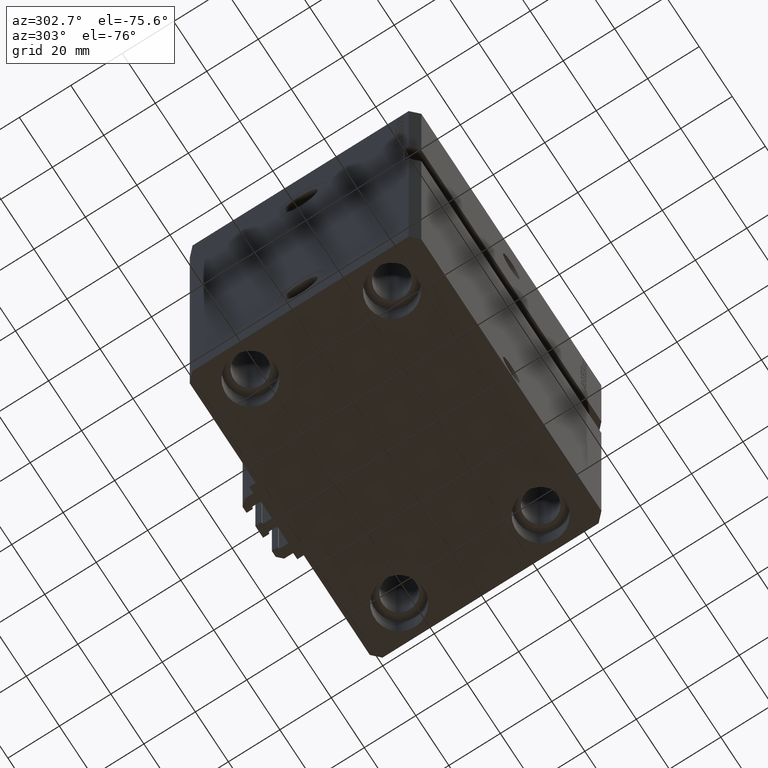
[diagram: clean part render]
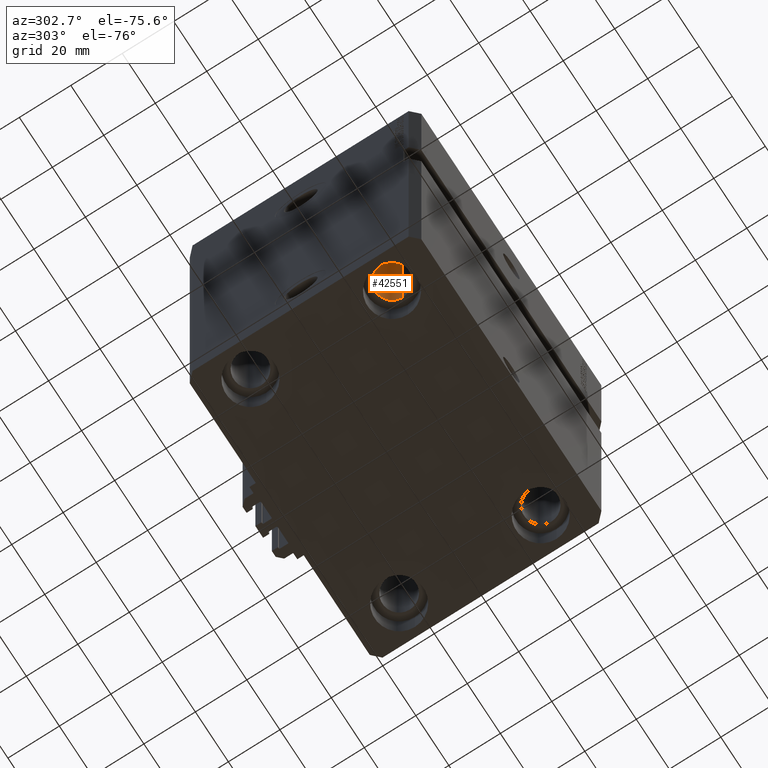
[diagram: same view with one face highlighted and labeled with its STEP entity id]
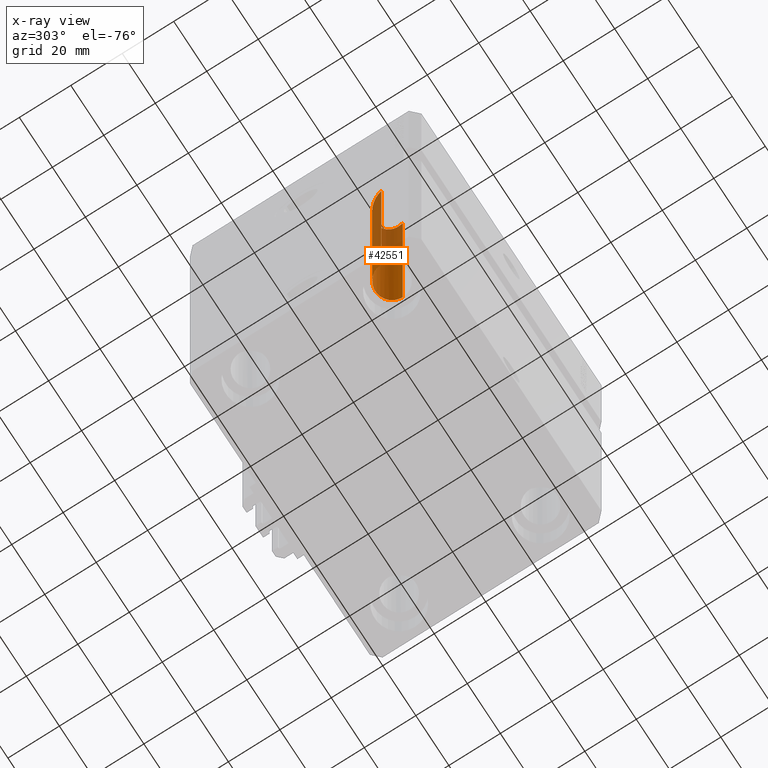
[diagram: x-ray of the same camera — body ghosted, the highlighted face saturated]
A machine part, auxiliary view. The second image highlights one B-rep face of the part: STEP entity #42551.
The next image is the same camera in x-ray: the body ghosted, the highlighted face saturated — about 55% of this face is hidden behind the body in this view.
In plain terms, the highlighted cylindrical surface (edge-blend (fillet) strip) has radius 6.5 mm, axis along (0, 0, 1).
Its self-contained STEP definition (entity closure, byte-faithful):
#101 = CARTESIAN_POINT ( 'NONE',  ( -51.50000000000000000, -27.49999999999999645, -152.0000000000000000 ) ) ;
#354 = CARTESIAN_POINT ( 'NONE',  ( -38.49999999999999289, -14.49999999999999822, -68.00000000000001421 ) ) ;
#5321 = EDGE_LOOP ( 'NONE', ( #8037, #16515, #22689, #40253 ) ) ;
#6506 = DIRECTION ( 'NONE',  ( -0.000000000000000000, -0.000000000000000000, 1.000000000000000000 ) ) ;
#6773 = CARTESIAN_POINT ( 'NONE',  ( -51.49999999999999289, -27.49999999999999289, -55.00000000000002132 ) ) ;
#6997 = CYLINDRICAL_SURFACE ( 'NONE', #35285, 6.499999999999999112 ) ;
#8037 = ORIENTED_EDGE ( 'NONE', *, *, #34837, .F. ) ;
#8947 = CARTESIAN_POINT ( 'NONE',  ( -38.50000000000000000, -27.49999999999999645, -152.0000000000000000 ) ) ;
#13032 = CARTESIAN_POINT ( 'NONE',  ( -51.50000000000000000, -27.49999999999999645, -165.0000000000000000 ) ) ;
#13413 = DIRECTION ( 'NONE',  ( -0.000000000000000000, -0.000000000000000000, 1.000000000000000000 ) ) ;
#14790 = CARTESIAN_POINT ( 'NONE',  ( -38.49999999999999289, -27.49999999999999289, -55.00000000000002132 ) ) ;
#16493 = DIRECTION ( 'NONE',  ( -0.000000000000000000, -0.000000000000000000, 1.000000000000000000 ) ) ;
#16515 = ORIENTED_EDGE ( 'NONE', *, *, #17742, .T. ) ;
#16936 = VERTEX_POINT ( 'NONE', #101 ) ;
#17742 = EDGE_CURVE ( 'NONE', #16936, #48029, #46053, .T. ) ;
#20929 = LINE ( 'NONE', #13032, #40958 ) ;
#21306 = LINE ( 'NONE', #47601, #41674 ) ;
#21528 = DIRECTION ( 'NONE',  ( 1.000000000000000000, 0.000000000000000000, 0.000000000000000000 ) ) ;
#21784 = DIRECTION ( 'NONE',  ( -1.000000000000000000, 0.000000000000000000, 0.000000000000000000 ) ) ;
#22689 = ORIENTED_EDGE ( 'NONE', *, *, #32432, .T. ) ;
#24011 = CARTESIAN_POINT ( 'NONE',  ( -51.49999999999999289, -27.49999999999999289, -55.00000000000002132 ) ) ;
#26451 = CARTESIAN_POINT ( 'NONE',  ( -38.49999999999999289, -27.49999999999999289, -55.00000000000002132 ) ) ;
#29626 = CARTESIAN_POINT ( 'NONE',  ( -45.00000000000000000, -27.49999999999999645, -165.0000000000000000 ) ) ;
#29891 = CARTESIAN_POINT ( 'NONE',  ( -45.00000000000000000, -27.49999999999999645, -152.0000000000000000 ) ) ;
#30350 = VERTEX_POINT ( 'NONE', #24011 ) ;
#32432 = EDGE_CURVE ( 'NONE', #48029, #33349, #21306, .T. ) ;
#33349 = VERTEX_POINT ( 'NONE', #14790 ) ;
#33508 = AXIS2_PLACEMENT_3D ( 'NONE', #29891, #44388, #21784 ) ;
#34837 = EDGE_CURVE ( 'NONE', #16936, #30350, #20929, .T. ) ;
#35285 = AXIS2_PLACEMENT_3D ( 'NONE', #29626, #6506, #21528 ) ;
#37022 = CARTESIAN_POINT ( 'NONE',  ( -51.50000000000000000, -14.49999999999999822, -68.00000000000001421 ) ) ;
#40192 = FACE_OUTER_BOUND ( 'NONE', #5321, .T. ) ;
#40253 = ORIENTED_EDGE ( 'NONE', *, *, #44199, .T. ) ;
#40928 =( BOUNDED_CURVE ( )  B_SPLINE_CURVE ( 3, ( #26451, #354, #37022, #6773 ),
 .UNSPECIFIED., .F., .F. ) 
 B_SPLINE_CURVE_WITH_KNOTS ( ( 4, 4 ),
 ( 1.570796326794896558, 4.712388980384689674 ),
 .UNSPECIFIED. ) 
 CURVE ( )  GEOMETRIC_REPRESENTATION_ITEM ( )  RATIONAL_B_SPLINE_CURVE ( ( 1.000000000000000000, 0.3333333333333333703, 0.3333333333333333703, 1.000000000000000000 ) ) 
 REPRESENTATION_ITEM ( '' )  );
#40958 = VECTOR ( 'NONE', #16493, 1000.000000000000000 ) ;
#41674 = VECTOR ( 'NONE', #13413, 1000.000000000000000 ) ;
#42551 = ADVANCED_FACE ( 'NONE', ( #40192 ), #6997, .F. ) ;
#44199 = EDGE_CURVE ( 'NONE', #33349, #30350, #40928, .T. ) ;
#44388 = DIRECTION ( 'NONE',  ( 0.000000000000000000, 0.000000000000000000, -1.000000000000000000 ) ) ;
#46053 = CIRCLE ( 'NONE', #33508, 6.499999999999999112 ) ;
#47601 = CARTESIAN_POINT ( 'NONE',  ( -38.50000000000000000, -27.49999999999999645, -165.0000000000000000 ) ) ;
#48029 = VERTEX_POINT ( 'NONE', #8947 ) ;